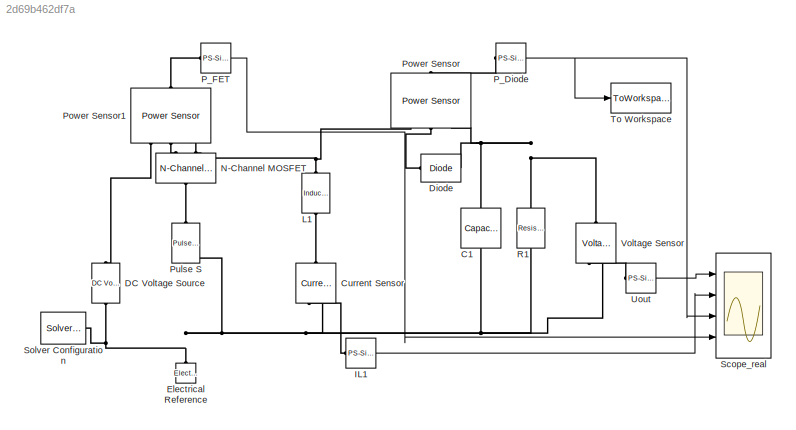
MODEL slx_2d69b462df7a
KIND model
CONFIG AbsTol = auto
CONFIG FixedStep = auto
CONFIG MaxStep = auto
CONFIG MinStep = auto
CONFIG RelTol = 0.001
CONFIG SampleTimeConstraint = Unconstrained
CONFIG Solver = VariableStepAuto
CONFIG SolverMode = Auto
CONFIG SolverName = VariableStepAuto
CONFIG StartTime = 0.0
CONFIG StopTime = 0.01
BLOCK [Reference] C1  REF=fl_lib/Electrical/Electrical Elements/Capacitor
  Ports = [0, 0, 0, 0, 0, 1, 1]
  SourceBlock = fl_lib/Electrical/Electrical Elements/Capacitor
  SourceType = Capacitor
BLOCK [Reference] Current Sensor  REF=fl_lib/Electrical/Electrical Sensors/Current Sensor
  Ports = [0, 0, 0, 0, 0, 1, 2]
  SourceBlock = fl_lib/Electrical/Electrical Sensors/Current Sensor
  SourceType = Current Sensor
BLOCK [Reference] DC Voltage Source  REF=fl_lib/Electrical/Electrical Sources/DC Voltage Source
  Ports = [0, 0, 0, 0, 0, 1, 1]
  SourceBlock = fl_lib/Electrical/Electrical Sources/DC Voltage Source
  SourceType = DC Voltage Source
BLOCK [Reference] Diode  REF=elec_lib/Semiconductor
Devices/Diode
  Ports = [0, 0, 0, 0, 0, 1, 1]
  SourceBlock = elec_lib/Semiconductor\nDevices/Diode
  SourceType = Diode
BLOCK [Reference] Electrical Reference  REF=fl_lib/Electrical/Electrical Elements/Electrical Reference
  Ports = [0, 0, 0, 0, 0, 1]
  SourceBlock = fl_lib/Electrical/Electrical Elements/Electrical Reference
  SourceType = Electrical Reference
BLOCK [Reference] IL1  REF=nesl_utility/PS-Simulink
Converter
  Ports = [0, 1, 0, 0, 0, 1]
  SourceBlock = nesl_utility/PS-Simulink\nConverter
  SourceType = PS-Simulink\nConverter
BLOCK [Reference] L1  REF=fl_lib/Electrical/Electrical Elements/Inductor
  Ports = [0, 0, 0, 0, 0, 1, 1]
  SourceBlock = fl_lib/Electrical/Electrical Elements/Inductor
  SourceType = Inductor
BLOCK [Reference] N-Channel MOSFET  REF=elec_lib/Semiconductor
Devices/N-Channel MOSFET
  Ports = [0, 0, 0, 0, 0, 1, 2]
  SourceBlock = elec_lib/Semiconductor\nDevices/N-Channel MOSFET
  SourceType = N-Channel MOSFET
BLOCK [Reference] P_Diode  REF=nesl_utility/PS-Simulink
Converter
  Ports = [0, 1, 0, 0, 0, 1]
  SourceBlock = nesl_utility/PS-Simulink\nConverter
  SourceType = PS-Simulink\nConverter
BLOCK [Reference] P_FET  REF=nesl_utility/PS-Simulink
Converter
  Ports = [0, 1, 0, 0, 0, 1]
  SourceBlock = nesl_utility/PS-Simulink\nConverter
  SourceType = PS-Simulink\nConverter
BLOCK [Reference] Power Sensor  REF=elec_lib/Sensors/Power Sensor
  Ports = [0, 0, 0, 0, 0, 3, 1]
  SourceBlock = elec_lib/Sensors/Power Sensor
  SourceType = Power Sensor
BLOCK [Reference] Power Sensor1  REF=elec_lib/Sensors/Power Sensor
  Ports = [0, 0, 0, 0, 0, 3, 1]
  SourceBlock = elec_lib/Sensors/Power Sensor
  SourceType = Power Sensor
BLOCK [Reference] Pulse S  REF=elec_lib/Additional
Components/SPICE-Compatible
Components/Sources/Pulse Voltage Source
  Ports = [0, 0, 0, 0, 0, 1, 1]
  SourceBlock = elec_lib/Additional\nComponents/SPICE-Compatible\nComponents/Sources/Pulse Voltage Source
  SourceType = Pulse Voltage Source
BLOCK [Reference] R1  REF=fl_lib/Electrical/Electrical Elements/Resistor
  Ports = [0, 0, 0, 0, 0, 1, 1]
  SourceBlock = fl_lib/Electrical/Electrical Elements/Resistor
  SourceType = Resistor
BLOCK [Scope] Scope_real
  NumInputPorts = 4
  Ports = [4]
  ScopeSpecificationString = Simulink.scopes.TimeScopeBlockCfg('CurrentConfiguration', extmgr.ConfigurationSet(extmgr.Configuration('Core','General UI',true),extmgr.Configuration('Core','Source UI',true),extmgr.Configuration('Sources','WiredSimulink',true),extmgr.Configuration('Visuals','Time Domain',true,'SerializedDisplays',{struct('MinYLimReal','-5.8244','MaxYLimReal','0.64776','YLabelReal','','MinYLimMag','0.00000','MaxYL...<+3436ch>
BLOCK [Reference] Solver Configuration  REF=nesl_utility/Solver
Configuration
  Ports = [0, 0, 0, 0, 0, 0, 1]
  SourceBlock = nesl_utility/Solver\nConfiguration
  SourceType = Solver\nConfiguration
BLOCK [ToWorkspace] To Workspace
  FixptAsFi = on
  MaxDataPoints = inf
  Ports = [1]
  SampleTime = -1
  Save2DSignal = 3-D array (concatenate along third dimension)
  VariableName = Power_diode
BLOCK [Reference] Uout  REF=nesl_utility/PS-Simulink
Converter
  Ports = [0, 1, 0, 0, 0, 1]
  SourceBlock = nesl_utility/PS-Simulink\nConverter
  SourceType = PS-Simulink\nConverter
BLOCK [Reference] Voltage Sensor  REF=fl_lib/Electrical/Electrical Sensors/Voltage Sensor
  Ports = [0, 0, 0, 0, 0, 1, 2]
  SourceBlock = fl_lib/Electrical/Electrical Sensors/Voltage Sensor
  SourceType = Voltage Sensor
LINE IL1:1 -> Scope_real:2
NET P_Diode:1 -> Scope_real:3, To Workspace:1
LINE P_FET:1 -> Scope_real:4
LINE Uout:1 -> Scope_real:1
PNET net1: C1:LConn1 -- Diode:LConn1 -- Power Sensor:LConn3 -- R1:LConn1 -- Voltage Sensor:LConn1
PNET net2: C1:RConn1 -- Current Sensor:RConn2 -- DC Voltage Source:RConn1 -- Electrical Reference:LConn1 -- Pulse S:RConn1 -- R1:RConn1 -- Solver Configuration:RConn1 -- Voltage Sensor:RConn2
PLINE Current Sensor:LConn1 -- L1:RConn1
PLINE Current Sensor:RConn1 -- IL1:LConn1
PLINE DC Voltage Source:LConn1 -- Power Sensor1:LConn1
PLINE Diode:RConn1 -- Power Sensor:LConn2
PNET net3: L1:LConn1 -- N-Channel MOSFET:RConn2 -- Power Sensor1:LConn3 -- Power Sensor:LConn1
PLINE N-Channel MOSFET:LConn1 -- Pulse S:LConn1
PLINE N-Channel MOSFET:RConn1 -- Power Sensor1:LConn2
PLINE P_Diode:LConn1 -- Power Sensor:RConn1
PLINE P_FET:LConn1 -- Power Sensor1:RConn1
PLINE Uout:LConn1 -- Voltage Sensor:RConn1
note: NET lines group one-source signal fan-out (src -> all destinations, sorted); 1:1 wires keep LINE; PNET lines group multi-terminal physical nets as a canonical sorted terminal list (undirected conserving connections); 2-terminal nets keep the pairwise PLINE form
